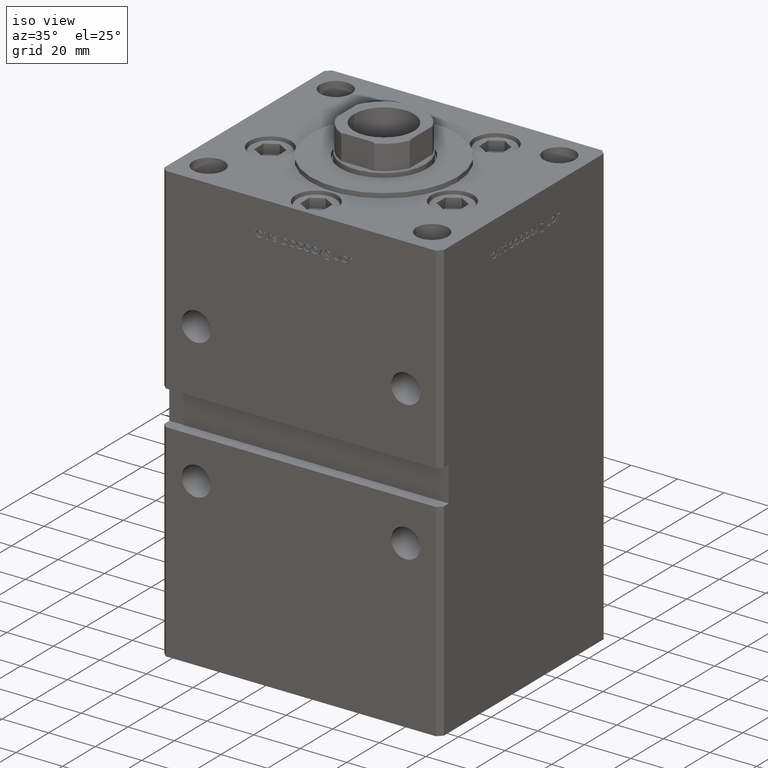
[diagram: clean part render]
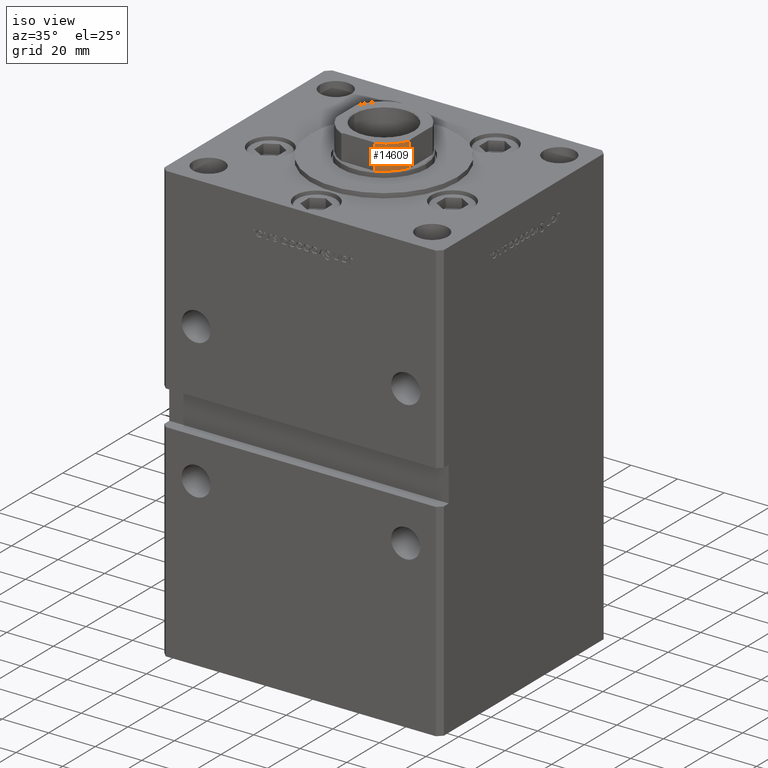
[diagram: same view with one face highlighted and labeled with its STEP entity id]
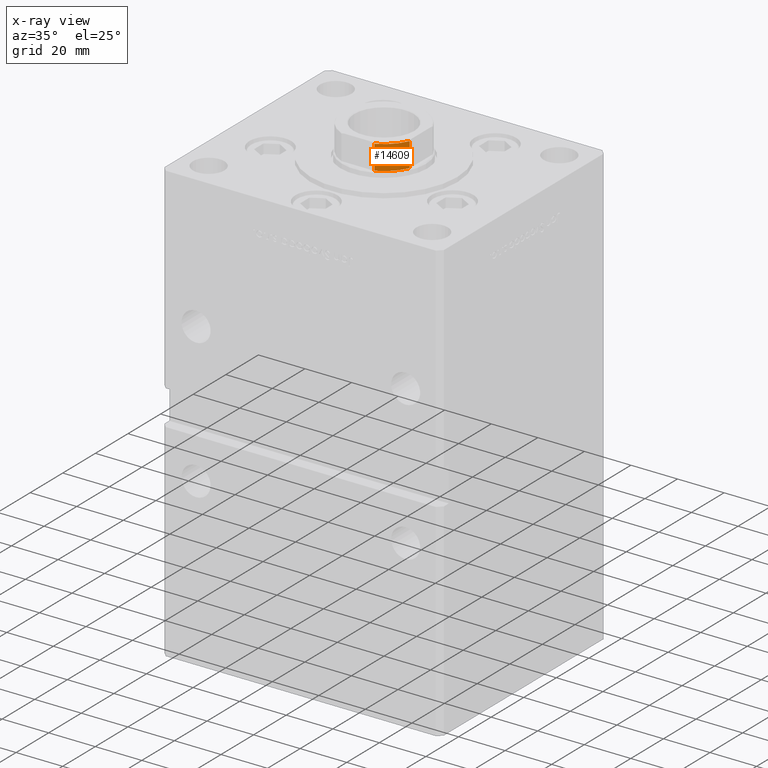
[diagram: x-ray of the same camera — body ghosted, the highlighted face saturated]
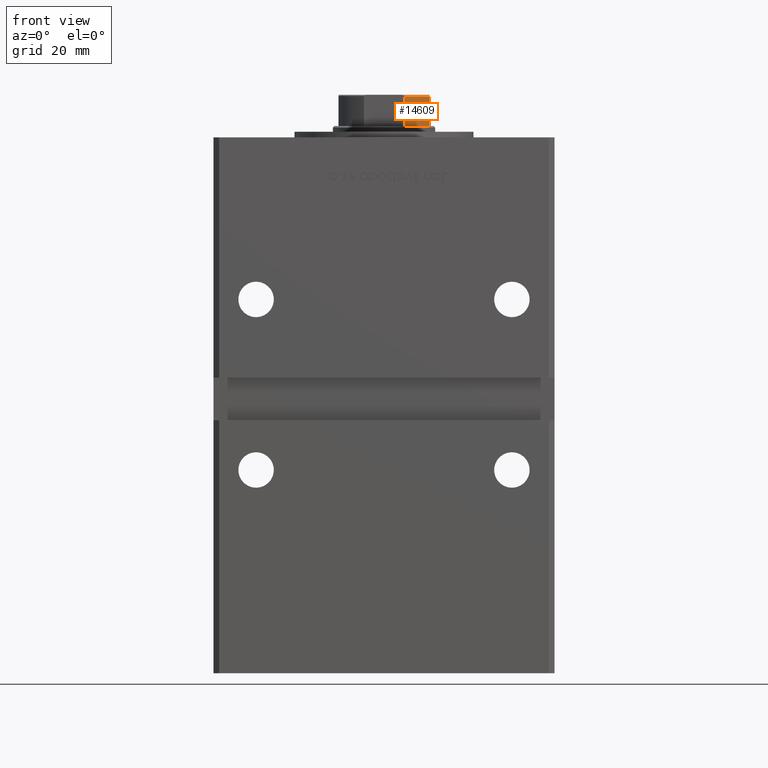
[diagram: same view with one face highlighted and labeled with its STEP entity id]
A machine part, iso view. The second image highlights one B-rep face of the part: STEP entity #14609.
The next image is the same camera in x-ray: the body ghosted, the highlighted face saturated — about 0% of this face is hidden behind the body in this view.
A second angle (front view) of the same face is appended — the face is thin or edge-on in the first view.
In plain terms, the highlighted cylindrical surface (partial cylindrical patch) has radius 17.5 mm, axis along (0, 0, 1).
Its self-contained STEP definition (entity closure, byte-faithful):
#2456 = ORIENTED_EDGE ( 'NONE', *, *, #42396, .T. ) ;
#4370 = VECTOR ( 'NONE', #22458, 1000.000000000000000 ) ;
#6108 = AXIS2_PLACEMENT_3D ( 'NONE', #39346, #52719, #35848 ) ;
#8320 = VERTEX_POINT ( 'NONE', #32880 ) ;
#8986 = AXIS2_PLACEMENT_3D ( 'NONE', #36931, #12496, #32379 ) ;
#12496 = DIRECTION ( 'NONE',  ( 0.000000000000000000, -0.000000000000000000, -1.000000000000000000 ) ) ;
#14609 = ADVANCED_FACE ( 'NONE', ( #20358 ), #24376, .T. ) ;
#15514 = ORIENTED_EDGE ( 'NONE', *, *, #19162, .T. ) ;
#15680 = DIRECTION ( 'NONE',  ( -0.000000000000000000, -0.000000000000000000, 1.000000000000000000 ) ) ;
#17797 = CARTESIAN_POINT ( 'NONE',  ( 7.088723439378916247, -16.00000000000000000, 168.7500000000000000 ) ) ;
#19162 = EDGE_CURVE ( 'NONE', #21767, #47737, #30248, .T. ) ;
#19300 = CIRCLE ( 'NONE', #8986, 17.50000000000000000 ) ;
#19343 = EDGE_LOOP ( 'NONE', ( #15514, #49862, #52731, #2456 ) ) ;
#20358 = FACE_OUTER_BOUND ( 'NONE', #19343, .T. ) ;
#20674 = EDGE_CURVE ( 'NONE', #47737, #29530, #19300, .T. ) ;
#21767 = VERTEX_POINT ( 'NONE', #25011 ) ;
#22458 = DIRECTION ( 'NONE',  ( -0.000000000000000000, -0.000000000000000000, 1.000000000000000000 ) ) ;
#24376 = CYLINDRICAL_SURFACE ( 'NONE', #42834, 17.50000000000000000 ) ;
#25011 = CARTESIAN_POINT ( 'NONE',  ( 15.99999999999999645, -7.088723439378925129, 158.2500000000000284 ) ) ;
#26192 = CARTESIAN_POINT ( 'NONE',  ( 15.99999999999999645, -7.088723439378925129, -0.001000000000001000089 ) ) ;
#28908 = CARTESIAN_POINT ( 'NONE',  ( 15.99999999999999645, -7.088723439378925129, 168.7500000000000000 ) ) ;
#29530 = VERTEX_POINT ( 'NONE', #17797 ) ;
#30248 = LINE ( 'NONE', #26192, #4370 ) ;
#32379 = DIRECTION ( 'NONE',  ( 1.000000000000000000, 0.000000000000000000, 0.000000000000000000 ) ) ;
#32709 = CARTESIAN_POINT ( 'NONE',  ( 0.000000000000000000, 0.000000000000000000, -0.001000000000001000089 ) ) ;
#32880 = CARTESIAN_POINT ( 'NONE',  ( 7.088723439378916247, -16.00000000000000000, 158.2500000000000284 ) ) ;
#35848 = DIRECTION ( 'NONE',  ( 1.000000000000000000, 0.000000000000000000, 0.000000000000000000 ) ) ;
#36093 = LINE ( 'NONE', #52971, #37015 ) ;
#36731 = DIRECTION ( 'NONE',  ( 1.000000000000000000, 0.000000000000000000, 0.000000000000000000 ) ) ;
#36931 = CARTESIAN_POINT ( 'NONE',  ( 0.000000000000000000, 0.000000000000000000, 168.7500000000000000 ) ) ;
#37015 = VECTOR ( 'NONE', #15680, 1000.000000000000000 ) ;
#39346 = CARTESIAN_POINT ( 'NONE',  ( 0.000000000000000000, 0.000000000000000000, 158.2500000000000000 ) ) ;
#42396 = EDGE_CURVE ( 'NONE', #8320, #21767, #52373, .T. ) ;
#42834 = AXIS2_PLACEMENT_3D ( 'NONE', #32709, #45038, #36731 ) ;
#45038 = DIRECTION ( 'NONE',  ( -0.000000000000000000, -0.000000000000000000, 1.000000000000000000 ) ) ;
#47737 = VERTEX_POINT ( 'NONE', #28908 ) ;
#49130 = EDGE_CURVE ( 'NONE', #8320, #29530, #36093, .T. ) ;
#49862 = ORIENTED_EDGE ( 'NONE', *, *, #20674, .T. ) ;
#52373 = CIRCLE ( 'NONE', #6108, 17.50000000000001421 ) ;
#52719 = DIRECTION ( 'NONE',  ( 0.000000000000000000, 0.000000000000000000, 1.000000000000000000 ) ) ;
#52731 = ORIENTED_EDGE ( 'NONE', *, *, #49130, .F. ) ;
#52971 = CARTESIAN_POINT ( 'NONE',  ( 7.088723439378916247, -16.00000000000000000, -0.001000000000001000089 ) ) ;